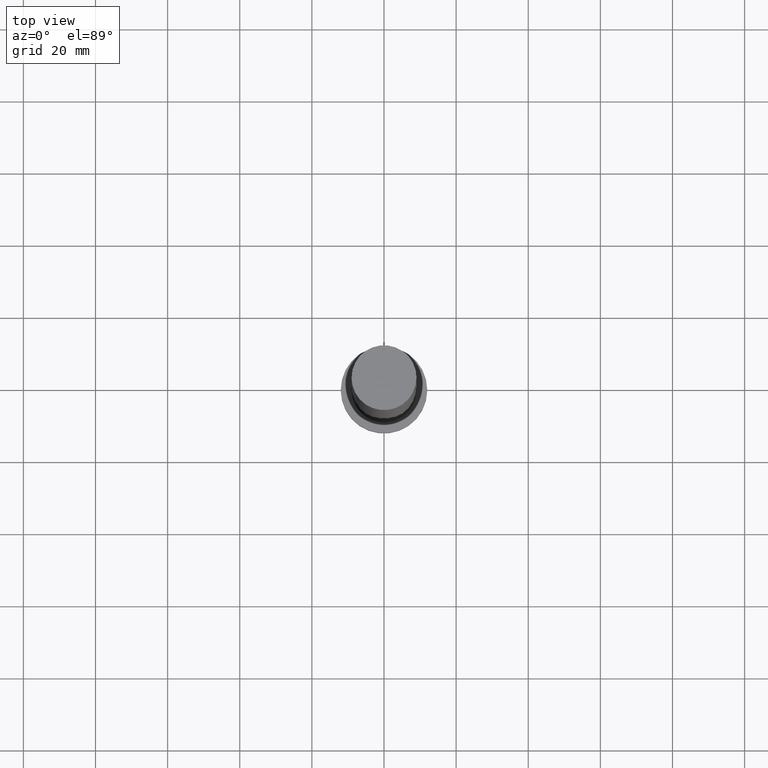
[diagram: clean part render]
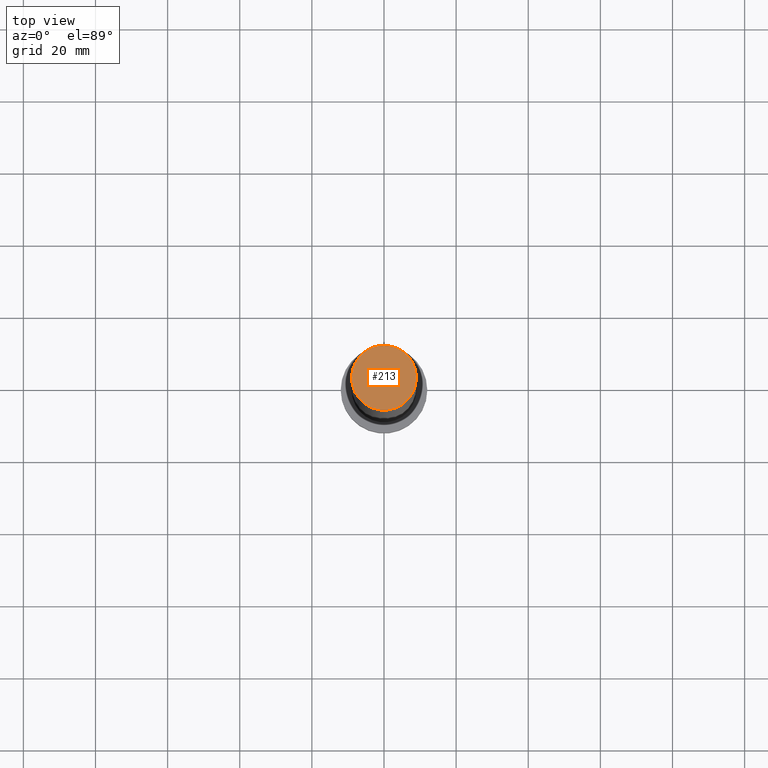
[diagram: same view with one face highlighted and labeled with its STEP entity id]
A machine part, top view. The second image highlights one B-rep face of the part: STEP entity #213.
In plain terms, the highlighted planar face has unit normal (0, 0, 1).
Its self-contained STEP definition (entity closure, byte-faithful):
#29 = CARTESIAN_POINT ( 'NONE',  ( 0.000000000000000000, 0.000000000000000000, 200.0000000000000000 ) ) ;
#31 = CARTESIAN_POINT ( 'NONE',  ( -9.000000000000000000, 0.000000000000000000, 200.0000000000000000 ) ) ;
#43 = CARTESIAN_POINT ( 'NONE',  ( 0.000000000000000000, 0.000000000000000000, 200.0000000000000000 ) ) ;
#44 = DIRECTION ( 'NONE',  ( 0.000000000000000000, 0.000000000000000000, 1.000000000000000000 ) ) ;
#46 = CARTESIAN_POINT ( 'NONE',  ( 0.000000000000000000, 0.000000000000000000, 200.0000000000000000 ) ) ;
#74 = CIRCLE ( 'NONE', #216, 9.000000000000000000 ) ;
#88 = DIRECTION ( 'NONE',  ( 1.000000000000000000, 0.000000000000000000, -0.000000000000000000 ) ) ;
#118 = EDGE_LOOP ( 'NONE', ( #124, #243 ) ) ;
#120 = DIRECTION ( 'NONE',  ( 1.000000000000000000, 0.000000000000000000, 0.000000000000000000 ) ) ;
#124 = ORIENTED_EDGE ( 'NONE', *, *, #150, .T. ) ;
#127 = DIRECTION ( 'NONE',  ( 0.000000000000000000, 0.000000000000000000, 1.000000000000000000 ) ) ;
#140 = CIRCLE ( 'NONE', #236, 9.000000000000000000 ) ;
#150 = EDGE_CURVE ( 'NONE', #193, #224, #140, .T. ) ;
#182 = PLANE ( 'NONE',  #203 ) ;
#193 = VERTEX_POINT ( 'NONE', #31 ) ;
#202 = FACE_OUTER_BOUND ( 'NONE', #118, .T. ) ;
#203 = AXIS2_PLACEMENT_3D ( 'NONE', #29, #127, #88 ) ;
#204 = DIRECTION ( 'NONE',  ( 0.000000000000000000, 0.000000000000000000, 1.000000000000000000 ) ) ;
#213 = ADVANCED_FACE ( 'NONE', ( #202 ), #182, .T. ) ;
#216 = AXIS2_PLACEMENT_3D ( 'NONE', #46, #204, #120 ) ;
#224 = VERTEX_POINT ( 'NONE', #250 ) ;
#225 = DIRECTION ( 'NONE',  ( 1.000000000000000000, 0.000000000000000000, 0.000000000000000000 ) ) ;
#236 = AXIS2_PLACEMENT_3D ( 'NONE', #43, #44, #225 ) ;
#243 = ORIENTED_EDGE ( 'NONE', *, *, #251, .T. ) ;
#250 = CARTESIAN_POINT ( 'NONE',  ( 9.000000000000000000, 1.102182119232617714E-15, 200.0000000000000000 ) ) ;
#251 = EDGE_CURVE ( 'NONE', #224, #193, #74, .T. ) ;